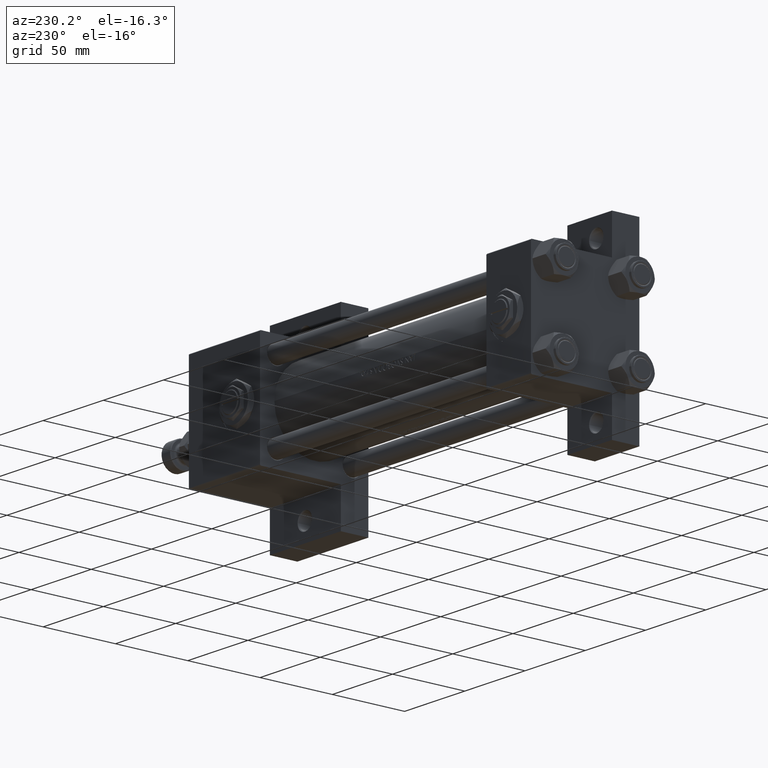
[diagram: clean part render]
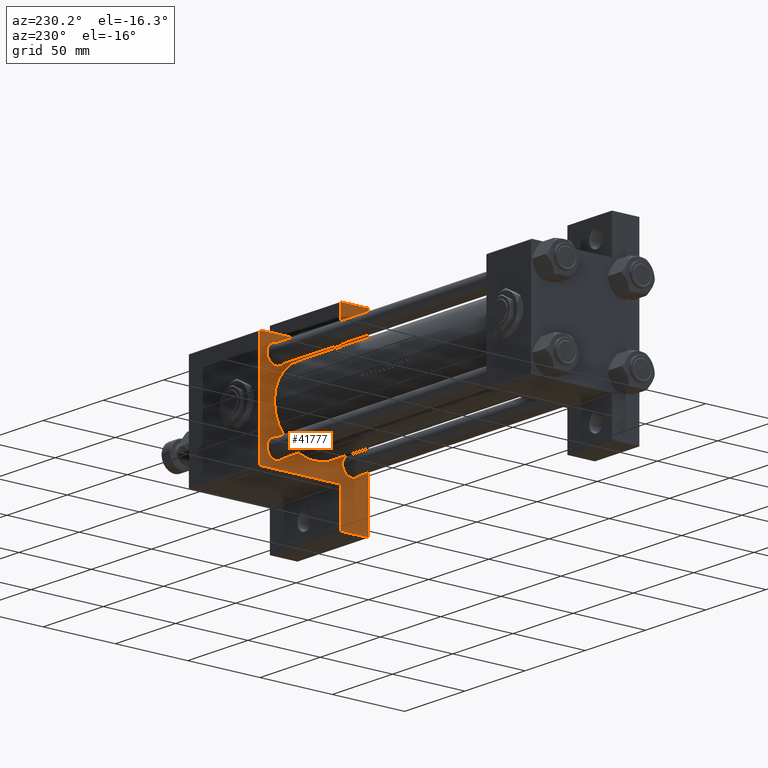
[diagram: same view with one face highlighted and labeled with its STEP entity id]
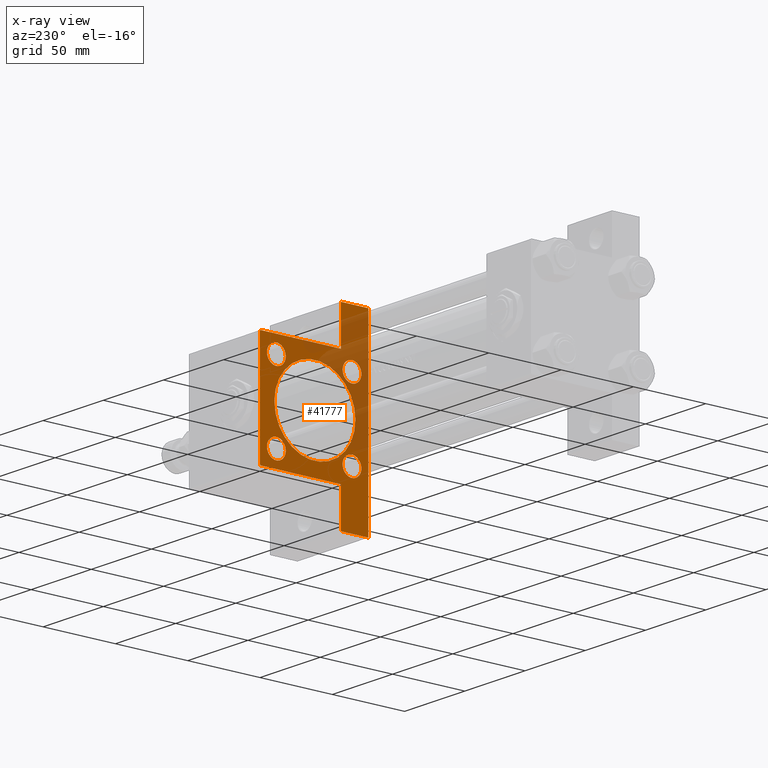
[diagram: x-ray of the same camera — body ghosted, the highlighted face saturated]
A machine part, auxiliary view. The second image highlights one B-rep face of the part: STEP entity #41777.
The next image is the same camera in x-ray: the body ghosted, the highlighted face saturated — about 33% of this face is hidden behind the body in this view.
In plain terms, the highlighted planar face has unit normal (-1, 0, 0).
Its self-contained STEP definition (entity closure, byte-faithful):
#86 = CARTESIAN_POINT ( 'NONE',  ( 225.0000000000000000, -26.14999999999999147, -19.65000000000000213 ) ) ;
#125 = LINE ( 'NONE', #19822, #1264 ) ;
#144 = LINE ( 'NONE', #23699, #16594 ) ;
#959 = CARTESIAN_POINT ( 'NONE',  ( 225.0000000000000000, 26.14999999999999858, 19.65000000000000568 ) ) ;
#984 = CARTESIAN_POINT ( 'NONE',  ( 225.0000000000000000, 37.50000000000000000, 36.99999999999993605 ) ) ;
#1174 = VERTEX_POINT ( 'NONE', #12671 ) ;
#1264 = VECTOR ( 'NONE', #22681, 1000.000000000000114 ) ;
#1751 = CARTESIAN_POINT ( 'NONE',  ( 225.0000000000000000, -37.50000000000000000, 37.49999999999997868 ) ) ;
#1915 = VECTOR ( 'NONE', #40761, 1000.000000000000000 ) ;
#2029 = LINE ( 'NONE', #25580, #31163 ) ;
#2139 = EDGE_CURVE ( 'NONE', #42625, #8863, #32824, .T. ) ;
#3452 = VERTEX_POINT ( 'NONE', #47096 ) ;
#3879 = VERTEX_POINT ( 'NONE', #14943 ) ;
#3980 = ORIENTED_EDGE ( 'NONE', *, *, #14924, .T. ) ;
#5744 = DIRECTION ( 'NONE',  ( 1.000000000000000000, 0.000000000000000000, -0.000000000000000000 ) ) ;
#5854 = LINE ( 'NONE', #1751, #30919 ) ;
#6796 = CARTESIAN_POINT ( 'NONE',  ( 225.0000000000000000, -26.14999999999999147, 32.65000000000001990 ) ) ;
#7385 = EDGE_LOOP ( 'NONE', ( #8663, #23959 ) ) ;
#7604 = EDGE_CURVE ( 'NONE', #42625, #37027, #15304, .T. ) ;
#7713 = CARTESIAN_POINT ( 'NONE',  ( 225.0000000000000000, -26.14999999999999147, -32.65000000000002700 ) ) ;
#7880 = EDGE_CURVE ( 'NONE', #26712, #46009, #125, .T. ) ;
#8050 = CARTESIAN_POINT ( 'NONE',  ( 225.0000000000000000, -26.14999999999999147, 26.15000000000000924 ) ) ;
#8126 = CARTESIAN_POINT ( 'NONE',  ( 225.0000000000000000, -63.50000000000002842, -18.50000000000000000 ) ) ;
#8303 = DIRECTION ( 'NONE',  ( 0.000000000000000000, 0.000000000000000000, 1.000000000000000000 ) ) ;
#8333 = DIRECTION ( 'NONE',  ( 0.000000000000000000, 0.000000000000000000, -1.000000000000000000 ) ) ;
#8413 = ORIENTED_EDGE ( 'NONE', *, *, #7604, .F. ) ;
#8663 = ORIENTED_EDGE ( 'NONE', *, *, #11717, .T. ) ;
#8665 = CARTESIAN_POINT ( 'NONE',  ( 225.0000000000000000, 0.000000000000000000, 0.000000000000000000 ) ) ;
#8863 = VERTEX_POINT ( 'NONE', #49297 ) ;
#9038 = CARTESIAN_POINT ( 'NONE',  ( 225.0000000000000000, 26.14999999999999858, -32.65000000000001279 ) ) ;
#9070 = VERTEX_POINT ( 'NONE', #47207 ) ;
#9119 = ORIENTED_EDGE ( 'NONE', *, *, #17416, .T. ) ;
#9294 = VERTEX_POINT ( 'NONE', #27912 ) ;
#9331 = AXIS2_PLACEMENT_3D ( 'NONE', #40922, #45531, #29146 ) ;
#9356 = VECTOR ( 'NONE', #10519, 1000.000000000000000 ) ;
#9578 = CARTESIAN_POINT ( 'NONE',  ( 225.0000000000000000, 26.14999999999999858, 26.15000000000000213 ) ) ;
#10519 = DIRECTION ( 'NONE',  ( 0.000000000000000000, -1.000000000000000000, -1.850371707708594316E-16 ) ) ;
#10996 = VERTEX_POINT ( 'NONE', #47802 ) ;
#11668 = CARTESIAN_POINT ( 'NONE',  ( 225.0000000000000284, 63.50000000000000000, -18.50000000000000000 ) ) ;
#11717 = EDGE_CURVE ( 'NONE', #23538, #33837, #48113, .T. ) ;
#12196 = ORIENTED_EDGE ( 'NONE', *, *, #46286, .T. ) ;
#12210 = VERTEX_POINT ( 'NONE', #17723 ) ;
#12435 = DIRECTION ( 'NONE',  ( 1.000000000000000000, 0.000000000000000000, -0.000000000000000000 ) ) ;
#12671 = CARTESIAN_POINT ( 'NONE',  ( 225.0000000000000284, 63.50000000000000000, -18.50000000000000000 ) ) ;
#12763 = DIRECTION ( 'NONE',  ( 0.000000000000000000, 0.000000000000000000, 1.000000000000000000 ) ) ;
#12999 = DIRECTION ( 'NONE',  ( 1.000000000000000000, 0.000000000000000000, -0.000000000000000000 ) ) ;
#13102 = CARTESIAN_POINT ( 'NONE',  ( 225.0000000000000000, 37.50000000000000000, -37.50000000000000000 ) ) ;
#13285 = CARTESIAN_POINT ( 'NONE',  ( 225.0000000000000000, 0.000000000000000000, -0.5000000000000004441 ) ) ;
#13425 = CARTESIAN_POINT ( 'NONE',  ( 225.0000000000000000, 0.000000000000000000, 27.50000000000000000 ) ) ;
#13785 = AXIS2_PLACEMENT_3D ( 'NONE', #8050, #23672, #8303 ) ;
#14269 = ORIENTED_EDGE ( 'NONE', *, *, #7880, .T. ) ;
#14924 = EDGE_CURVE ( 'NONE', #36018, #12210, #33504, .T. ) ;
#14941 = ORIENTED_EDGE ( 'NONE', *, *, #17461, .T. ) ;
#14943 = CARTESIAN_POINT ( 'NONE',  ( 225.0000000000000000, -26.14999999999999147, 19.65000000000000213 ) ) ;
#14992 = AXIS2_PLACEMENT_3D ( 'NONE', #46424, #15655, #18998 ) ;
#15059 = DIRECTION ( 'NONE',  ( 1.000000000000000000, 0.000000000000000000, -0.000000000000000000 ) ) ;
#15249 = AXIS2_PLACEMENT_3D ( 'NONE', #34028, #15059, #22991 ) ;
#15304 = LINE ( 'NONE', #8126, #40507 ) ;
#15410 = VECTOR ( 'NONE', #24618, 1000.000000000000000 ) ;
#15536 = ORIENTED_EDGE ( 'NONE', *, *, #22328, .T. ) ;
#15539 = ORIENTED_EDGE ( 'NONE', *, *, #16257, .T. ) ;
#15655 = DIRECTION ( 'NONE',  ( 1.000000000000000000, 0.000000000000000000, -0.000000000000000000 ) ) ;
#15736 = EDGE_CURVE ( 'NONE', #22424, #8863, #5854, .T. ) ;
#15784 = CIRCLE ( 'NONE', #23170, 6.500000000000008882 ) ;
#16257 = EDGE_CURVE ( 'NONE', #31914, #3879, #50596, .T. ) ;
#16532 = DIRECTION ( 'NONE',  ( 0.000000000000000000, 0.000000000000000000, 1.000000000000000000 ) ) ;
#16573 = CIRCLE ( 'NONE', #45212, 28.00000000000000000 ) ;
#16594 = VECTOR ( 'NONE', #39325, 1000.000000000000114 ) ;
#16855 = CARTESIAN_POINT ( 'NONE',  ( 225.0000000000000000, -63.50000000000002842, -18.50000000000000000 ) ) ;
#17416 = EDGE_CURVE ( 'NONE', #10996, #37027, #35906, .T. ) ;
#17461 = EDGE_CURVE ( 'NONE', #9070, #1174, #40249, .T. ) ;
#17647 = EDGE_LOOP ( 'NONE', ( #15539, #50405 ) ) ;
#17723 = CARTESIAN_POINT ( 'NONE',  ( 225.0000000000000000, 3.429011037612589276E-15, -28.50000000000000000 ) ) ;
#18495 = DIRECTION ( 'NONE',  ( 0.000000000000000000, 0.000000000000000000, 1.000000000000000000 ) ) ;
#18744 = AXIS2_PLACEMENT_3D ( 'NONE', #13285, #43788, #44033 ) ;
#18998 = DIRECTION ( 'NONE',  ( 0.000000000000000000, 0.000000000000000000, 1.000000000000000000 ) ) ;
#19390 = ORIENTED_EDGE ( 'NONE', *, *, #41003, .T. ) ;
#19822 = CARTESIAN_POINT ( 'NONE',  ( 225.0000000000000000, 37.24999999999996447, 37.24999999999996447 ) ) ;
#20415 = CARTESIAN_POINT ( 'NONE',  ( 225.0000000000000000, 26.14999999999999858, 26.15000000000000213 ) ) ;
#20686 = FACE_BOUND ( 'NONE', #38114, .T. ) ;
#22181 = AXIS2_PLACEMENT_3D ( 'NONE', #9578, #5744, #44432 ) ;
#22328 = EDGE_CURVE ( 'NONE', #41019, #3452, #25437, .T. ) ;
#22424 = VERTEX_POINT ( 'NONE', #23115 ) ;
#22467 = ORIENTED_EDGE ( 'NONE', *, *, #2139, .T. ) ;
#22681 = DIRECTION ( 'NONE',  ( 0.000000000000000000, 0.7071067811865474617, -0.7071067811865474617 ) ) ;
#22722 = ORIENTED_EDGE ( 'NONE', *, *, #15736, .F. ) ;
#22861 = EDGE_CURVE ( 'NONE', #46009, #9070, #2029, .T. ) ;
#22991 = DIRECTION ( 'NONE',  ( 0.000000000000000000, 0.000000000000000000, 1.000000000000000000 ) ) ;
#23115 = CARTESIAN_POINT ( 'NONE',  ( 225.0000000000000000, -37.50000000000000000, 36.99999999999995026 ) ) ;
#23170 = AXIS2_PLACEMENT_3D ( 'NONE', #29777, #41805, #18495 ) ;
#23538 = VERTEX_POINT ( 'NONE', #86 ) ;
#23672 = DIRECTION ( 'NONE',  ( 1.000000000000000000, 0.000000000000000000, -0.000000000000000000 ) ) ;
#23699 = CARTESIAN_POINT ( 'NONE',  ( 225.0000000000000000, -37.24999999999997158, 37.24999999999997158 ) ) ;
#23959 = ORIENTED_EDGE ( 'NONE', *, *, #35493, .T. ) ;
#24035 = EDGE_LOOP ( 'NONE', ( #3980, #49911 ) ) ;
#24245 = EDGE_LOOP ( 'NONE', ( #12196, #48122 ) ) ;
#24618 = DIRECTION ( 'NONE',  ( 0.000000000000000000, -1.000000000000000000, 0.000000000000000000 ) ) ;
#24766 = DIRECTION ( 'NONE',  ( 0.000000000000000000, 0.000000000000000000, 1.000000000000000000 ) ) ;
#25189 = AXIS2_PLACEMENT_3D ( 'NONE', #43948, #12435, #16532 ) ;
#25283 = FACE_BOUND ( 'NONE', #24035, .T. ) ;
#25437 = CIRCLE ( 'NONE', #22181, 6.499999999999995559 ) ;
#25580 = CARTESIAN_POINT ( 'NONE',  ( 225.0000000000000000, 37.50000000000000000, 37.49999999999999289 ) ) ;
#25656 = CARTESIAN_POINT ( 'NONE',  ( 225.0000000000000000, 37.50000000000000000, 37.49999999999999289 ) ) ;
#26635 = EDGE_LOOP ( 'NONE', ( #29905, #14269, #32185, #14941, #40335, #9119, #8413, #22467, #22722, #30418 ) ) ;
#26712 = VERTEX_POINT ( 'NONE', #45686 ) ;
#27289 = DIRECTION ( 'NONE',  ( 0.000000000000000000, 0.000000000000000000, -1.000000000000000000 ) ) ;
#27389 = EDGE_CURVE ( 'NONE', #22424, #9294, #144, .T. ) ;
#27912 = CARTESIAN_POINT ( 'NONE',  ( 225.0000000000000000, -36.99999999999997158, 37.49999999999997868 ) ) ;
#28123 = FACE_BOUND ( 'NONE', #24245, .T. ) ;
#28311 = DIRECTION ( 'NONE',  ( 1.000000000000000000, 0.000000000000000000, 0.000000000000000000 ) ) ;
#29146 = DIRECTION ( 'NONE',  ( 0.000000000000000000, 0.000000000000000000, 1.000000000000000000 ) ) ;
#29658 = VECTOR ( 'NONE', #27289, 1000.000000000000000 ) ;
#29777 = CARTESIAN_POINT ( 'NONE',  ( 225.0000000000000000, 26.14999999999999858, -26.15000000000000213 ) ) ;
#29905 = ORIENTED_EDGE ( 'NONE', *, *, #32758, .F. ) ;
#30418 = ORIENTED_EDGE ( 'NONE', *, *, #27389, .T. ) ;
#30919 = VECTOR ( 'NONE', #33009, 1000.000000000000000 ) ;
#31163 = VECTOR ( 'NONE', #48682, 1000.000000000000000 ) ;
#31223 = EDGE_CURVE ( 'NONE', #45332, #46725, #15784, .T. ) ;
#31321 = CIRCLE ( 'NONE', #14992, 6.500000000000008882 ) ;
#31914 = VERTEX_POINT ( 'NONE', #6796 ) ;
#32185 = ORIENTED_EDGE ( 'NONE', *, *, #22861, .T. ) ;
#32226 = CIRCLE ( 'NONE', #9331, 6.500000000000008882 ) ;
#32616 = VECTOR ( 'NONE', #44354, 1000.000000000000000 ) ;
#32758 = EDGE_CURVE ( 'NONE', #26712, #9294, #50006, .T. ) ;
#32824 = LINE ( 'NONE', #48978, #1915 ) ;
#33009 = DIRECTION ( 'NONE',  ( 0.000000000000000000, -9.251858538542972814E-17, -1.000000000000000000 ) ) ;
#33504 = CIRCLE ( 'NONE', #18744, 28.00000000000000000 ) ;
#33837 = VERTEX_POINT ( 'NONE', #7713 ) ;
#34028 = CARTESIAN_POINT ( 'NONE',  ( 225.0000000000000000, -26.14999999999999147, -26.15000000000000924 ) ) ;
#35493 = EDGE_CURVE ( 'NONE', #33837, #23538, #38179, .T. ) ;
#35906 = LINE ( 'NONE', #13102, #15410 ) ;
#36018 = VERTEX_POINT ( 'NONE', #13425 ) ;
#37027 = VERTEX_POINT ( 'NONE', #44635 ) ;
#37080 = FACE_OUTER_BOUND ( 'NONE', #26635, .T. ) ;
#38114 = EDGE_LOOP ( 'NONE', ( #19390, #15536 ) ) ;
#38179 = CIRCLE ( 'NONE', #15249, 6.500000000000008882 ) ;
#39325 = DIRECTION ( 'NONE',  ( -0.000000000000000000, 0.7071067811865474617, 0.7071067811865474617 ) ) ;
#40249 = LINE ( 'NONE', #43853, #32616 ) ;
#40256 = AXIS2_PLACEMENT_3D ( 'NONE', #8665, #40418, #12763 ) ;
#40335 = ORIENTED_EDGE ( 'NONE', *, *, #43813, .T. ) ;
#40418 = DIRECTION ( 'NONE',  ( -1.000000000000000000, -0.000000000000000000, 0.000000000000000000 ) ) ;
#40507 = VECTOR ( 'NONE', #42700, 1000.000000000000000 ) ;
#40761 = DIRECTION ( 'NONE',  ( 0.000000000000000000, 1.000000000000000000, 0.000000000000000000 ) ) ;
#40922 = CARTESIAN_POINT ( 'NONE',  ( 225.0000000000000000, 26.14999999999999858, -26.15000000000000213 ) ) ;
#41003 = EDGE_CURVE ( 'NONE', #3452, #41019, #47602, .T. ) ;
#41019 = VERTEX_POINT ( 'NONE', #959 ) ;
#41777 = ADVANCED_FACE ( 'NONE', ( #44258, #20686, #28123, #48372, #25283, #37080 ), #44770, .T. ) ;
#41805 = DIRECTION ( 'NONE',  ( 1.000000000000000000, 0.000000000000000000, -0.000000000000000000 ) ) ;
#42625 = VERTEX_POINT ( 'NONE', #16855 ) ;
#42700 = DIRECTION ( 'NONE',  ( 0.000000000000000000, 0.000000000000000000, -1.000000000000000000 ) ) ;
#43788 = DIRECTION ( 'NONE',  ( 1.000000000000000000, 0.000000000000000000, 0.000000000000000000 ) ) ;
#43812 = EDGE_CURVE ( 'NONE', #12210, #36018, #16573, .T. ) ;
#43813 = EDGE_CURVE ( 'NONE', #1174, #10996, #47544, .T. ) ;
#43853 = CARTESIAN_POINT ( 'NONE',  ( 225.0000000000000284, 63.50000000000000000, -18.50000000000000000 ) ) ;
#43948 = CARTESIAN_POINT ( 'NONE',  ( 225.0000000000000000, -26.14999999999999147, -26.15000000000000924 ) ) ;
#44033 = DIRECTION ( 'NONE',  ( 0.000000000000000000, 0.000000000000000000, -1.000000000000000000 ) ) ;
#44258 = FACE_BOUND ( 'NONE', #17647, .T. ) ;
#44354 = DIRECTION ( 'NONE',  ( -0.000000000000000000, 1.000000000000000000, -0.000000000000000000 ) ) ;
#44432 = DIRECTION ( 'NONE',  ( 0.000000000000000000, 0.000000000000000000, 1.000000000000000000 ) ) ;
#44635 = CARTESIAN_POINT ( 'NONE',  ( 225.0000000000000000, -63.50000000000002842, -37.50000000000000000 ) ) ;
#44770 = PLANE ( 'NONE',  #40256 ) ;
#45212 = AXIS2_PLACEMENT_3D ( 'NONE', #47033, #28311, #8333 ) ;
#45332 = VERTEX_POINT ( 'NONE', #9038 ) ;
#45531 = DIRECTION ( 'NONE',  ( 1.000000000000000000, 0.000000000000000000, -0.000000000000000000 ) ) ;
#45686 = CARTESIAN_POINT ( 'NONE',  ( 225.0000000000000000, 36.99999999999994316, 37.49999999999999289 ) ) ;
#45963 = CARTESIAN_POINT ( 'NONE',  ( 225.0000000000000000, 26.14999999999999858, -19.64999999999999503 ) ) ;
#46009 = VERTEX_POINT ( 'NONE', #984 ) ;
#46286 = EDGE_CURVE ( 'NONE', #46725, #45332, #32226, .T. ) ;
#46424 = CARTESIAN_POINT ( 'NONE',  ( 225.0000000000000000, -26.14999999999999147, 26.15000000000000924 ) ) ;
#46725 = VERTEX_POINT ( 'NONE', #45963 ) ;
#47033 = CARTESIAN_POINT ( 'NONE',  ( 225.0000000000000000, 0.000000000000000000, -0.5000000000000004441 ) ) ;
#47096 = CARTESIAN_POINT ( 'NONE',  ( 225.0000000000000000, 26.14999999999999858, 32.65000000000000568 ) ) ;
#47207 = CARTESIAN_POINT ( 'NONE',  ( 225.0000000000000000, 37.50000000000000000, -18.50000000000000355 ) ) ;
#47544 = LINE ( 'NONE', #11668, #29658 ) ;
#47602 = CIRCLE ( 'NONE', #50054, 6.499999999999995559 ) ;
#47802 = CARTESIAN_POINT ( 'NONE',  ( 225.0000000000000284, 63.50000000000000000, -37.50000000000000000 ) ) ;
#48113 = CIRCLE ( 'NONE', #25189, 6.500000000000008882 ) ;
#48122 = ORIENTED_EDGE ( 'NONE', *, *, #31223, .T. ) ;
#48372 = FACE_BOUND ( 'NONE', #7385, .T. ) ;
#48682 = DIRECTION ( 'NONE',  ( 0.000000000000000000, 0.000000000000000000, -1.000000000000000000 ) ) ;
#48744 = EDGE_CURVE ( 'NONE', #3879, #31914, #31321, .T. ) ;
#48978 = CARTESIAN_POINT ( 'NONE',  ( 225.0000000000000000, -63.50000000000002842, -18.50000000000000000 ) ) ;
#49297 = CARTESIAN_POINT ( 'NONE',  ( 225.0000000000000000, -37.50000000000000000, -18.50000000000000000 ) ) ;
#49911 = ORIENTED_EDGE ( 'NONE', *, *, #43812, .T. ) ;
#50006 = LINE ( 'NONE', #25656, #9356 ) ;
#50054 = AXIS2_PLACEMENT_3D ( 'NONE', #20415, #12999, #24766 ) ;
#50405 = ORIENTED_EDGE ( 'NONE', *, *, #48744, .T. ) ;
#50596 = CIRCLE ( 'NONE', #13785, 6.500000000000008882 ) ;